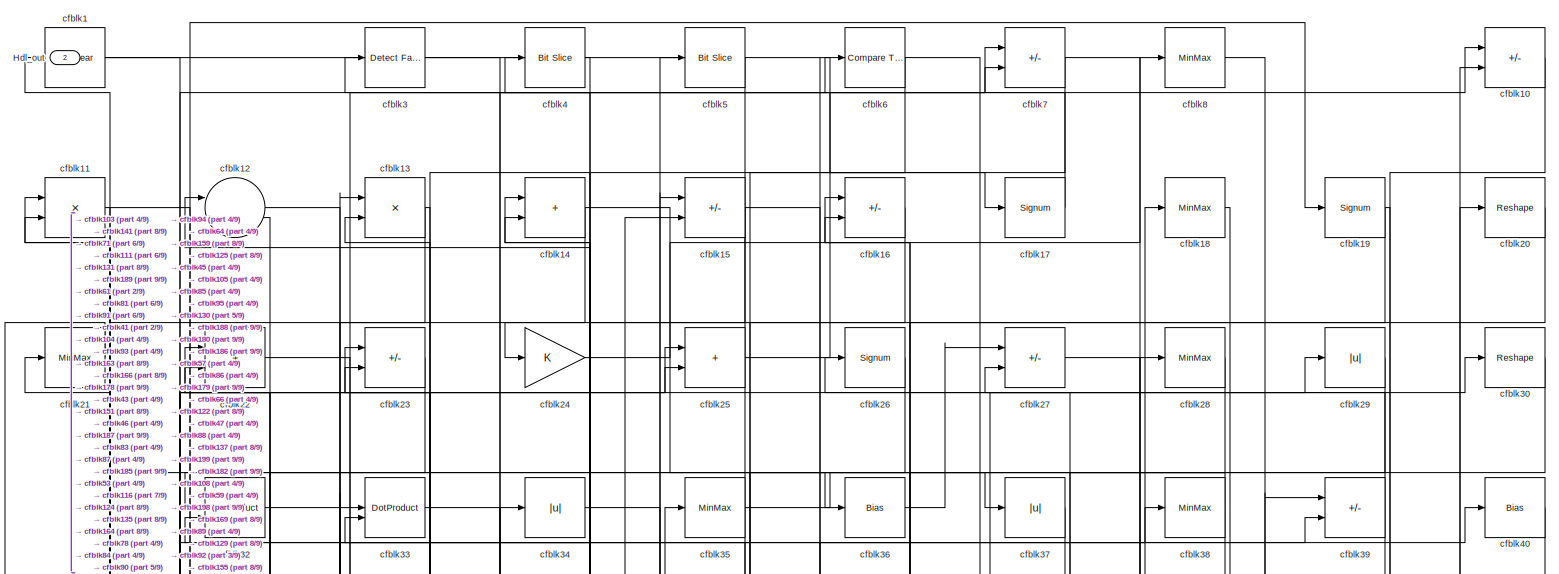
[diagram: root canvas - part 1/9, full width, top band]
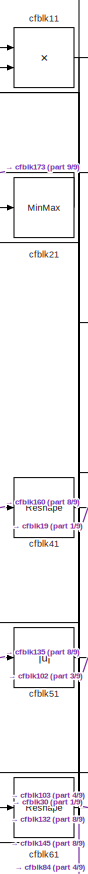
[diagram: root canvas - part 2/9, top left region]
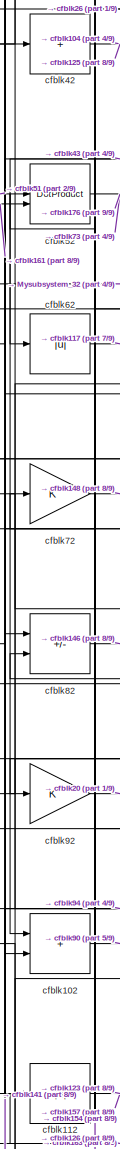
[diagram: root canvas - part 3/9, middle left region]
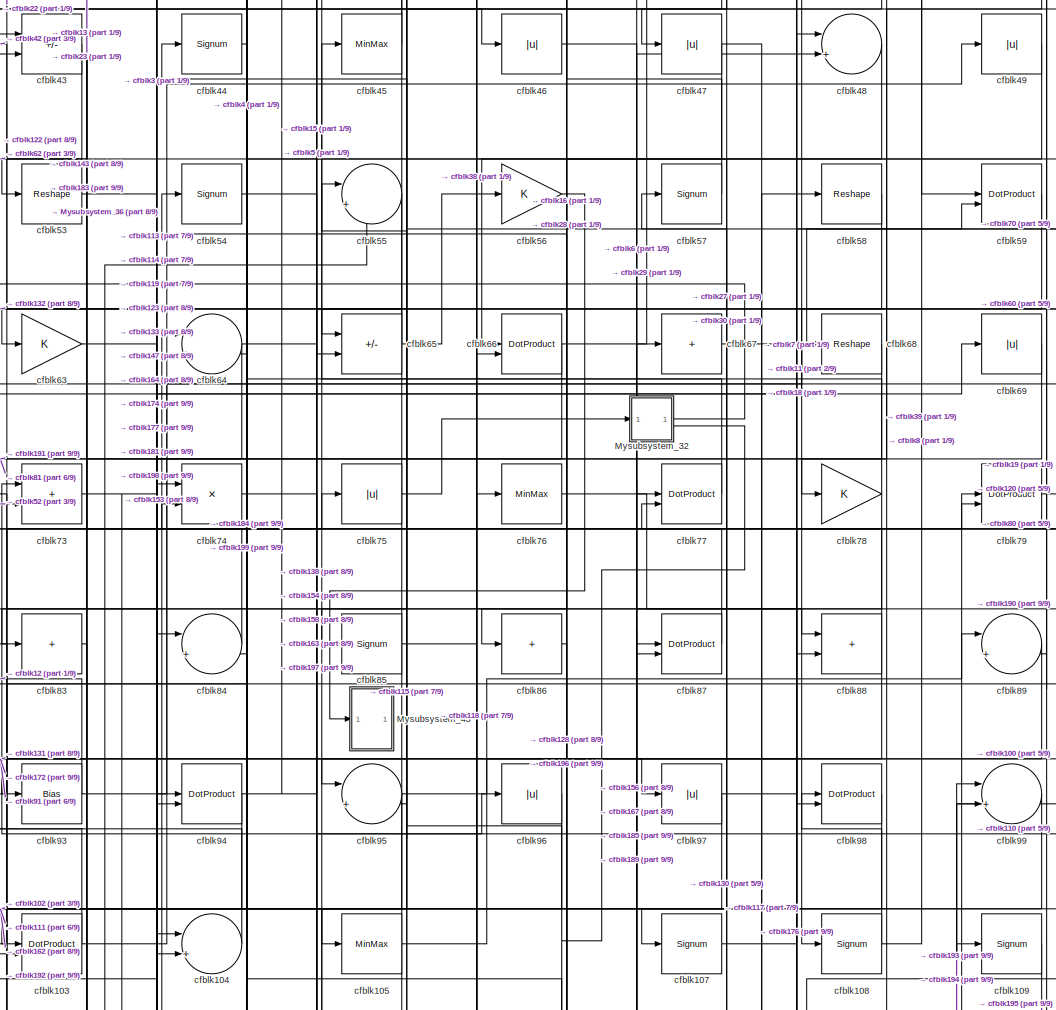
[diagram: root canvas - part 4/9, central region]
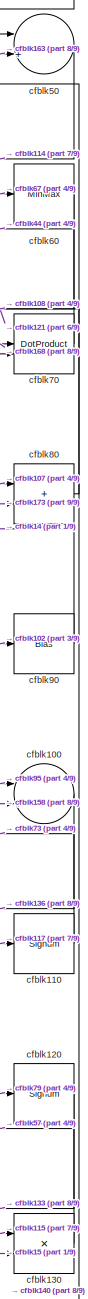
[diagram: root canvas - part 5/9, middle right region]
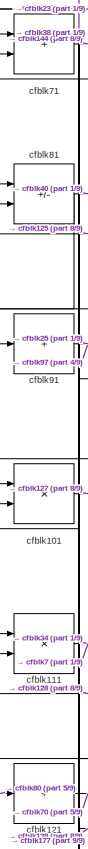
[diagram: root canvas - part 6/9, middle left region]
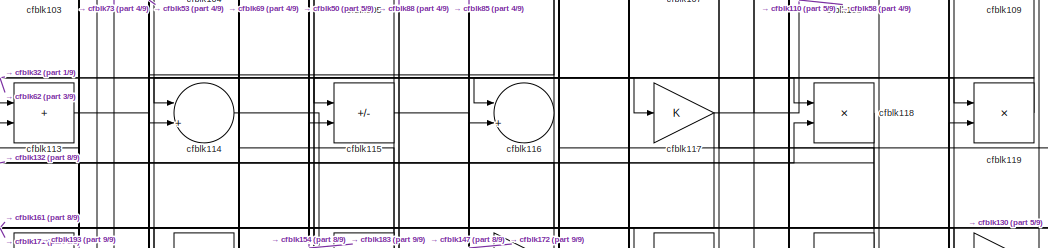
[diagram: root canvas - part 7/9, central region]
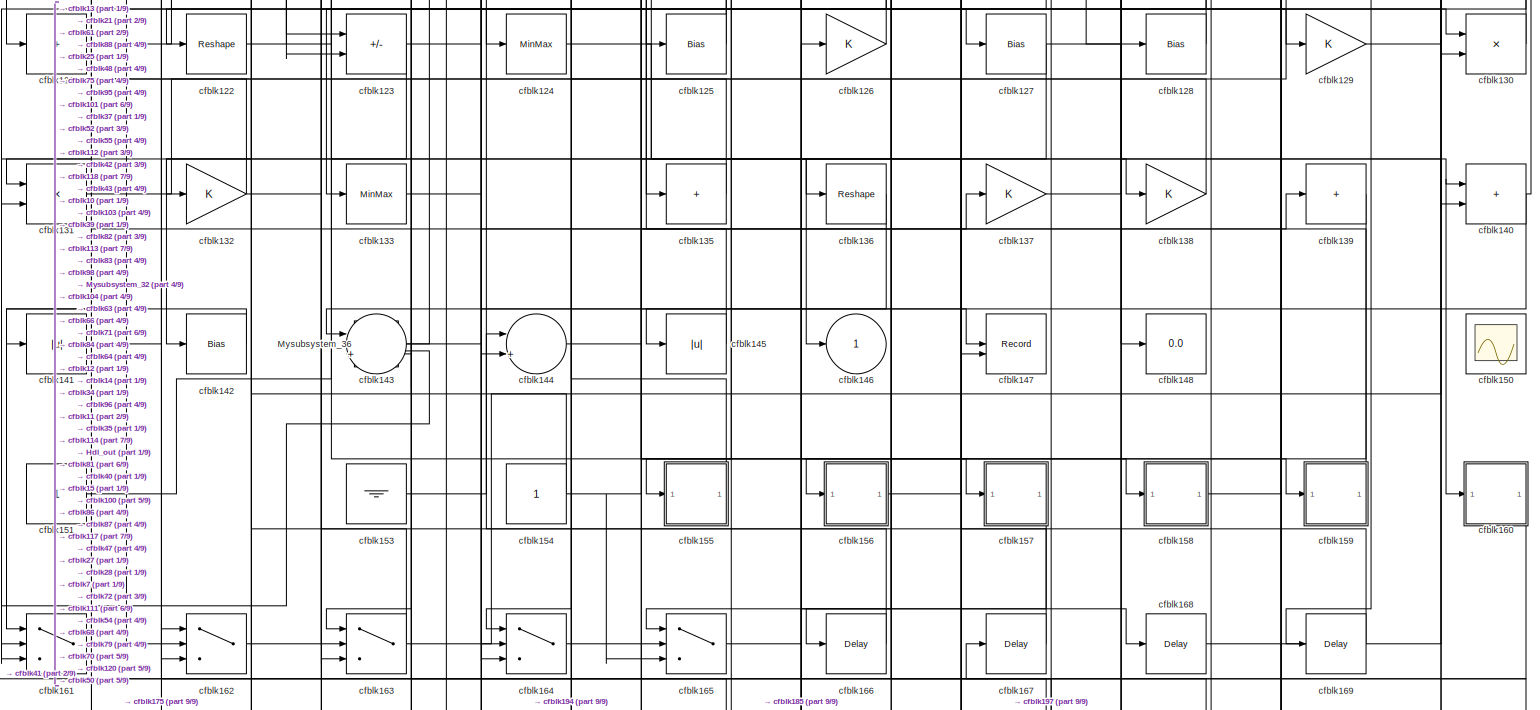
[diagram: root canvas - part 8/9, full width, bottom band]
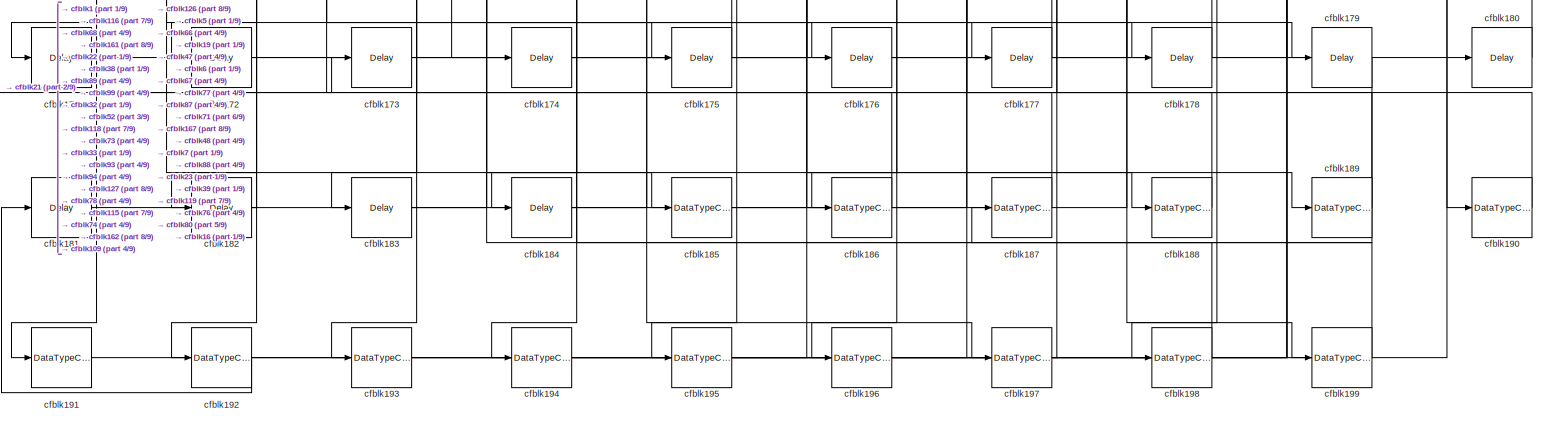
[diagram: root canvas - part 9/9, full width, bottom band]
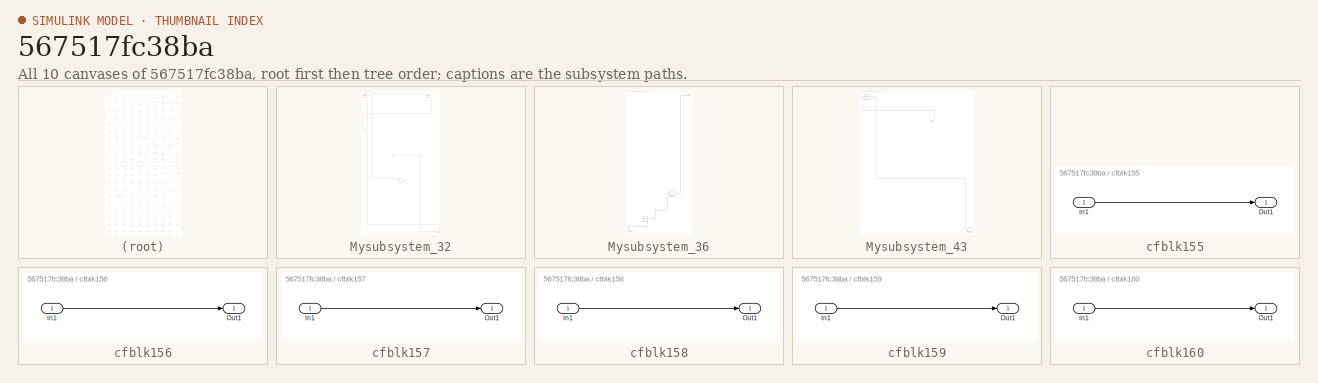
[diagram: thumbnail index - all 10 canvases of the model, root first then tree order]
MODEL slx_567517fc38ba
KIND model
CONFIG AbsTol = auto
CONFIG EnableMultiTasking = off
CONFIG FixedStep = auto
CONFIG MaxStep = auto
CONFIG MinStep = auto
CONFIG RelTol = 1e-3
CONFIG SampleTimeConstraint = Unconstrained
CONFIG SolverName = VariableStepAuto
CONFIG StartTime = 0.0
CONFIG StopTime = 10.0
BLOCK [Outport] Hdl_out
  OutDataTypeStr = uint8
  Port = 2
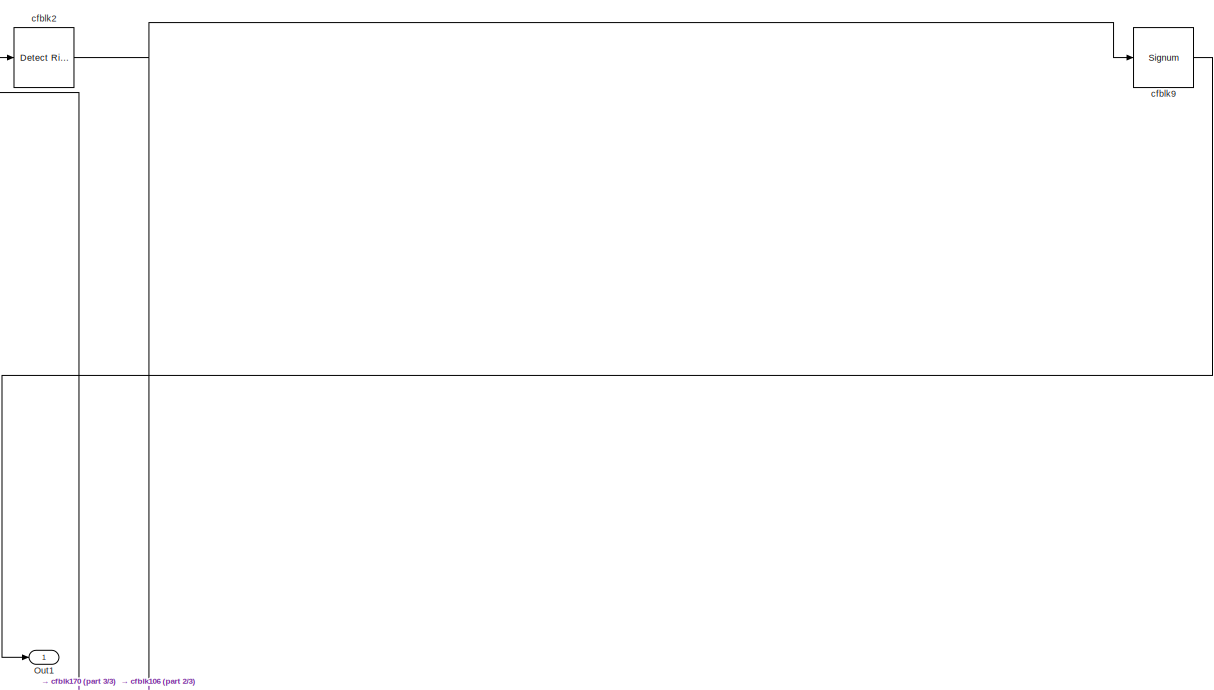
[diagram: Mysubsystem_32 - part 1/3, full width, top band]
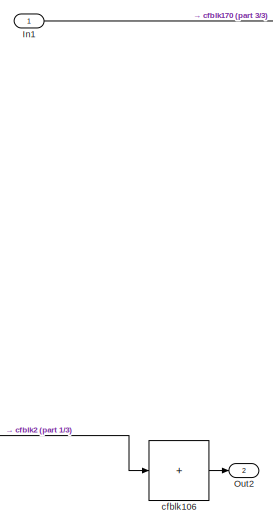
[diagram: Mysubsystem_32 - part 2/3, central region]
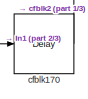
[diagram: Mysubsystem_32 - part 3/3, bottom right region]
BLOCK [SubSystem] Mysubsystem_32
  RTWFcnName = Mysubsystem_32
  RTWFcnNameOpts = User specified
  RTWFileNameOpts = Use function name
  RTWSystemCode = Reusable function
  TreatAsAtomicUnit = on
BLOCK [Inport] Mysubsystem_32/In1
BLOCK [Outport] Mysubsystem_32/Out1
BLOCK [Outport] Mysubsystem_32/Out2
  Port = 2
BLOCK [Sum] Mysubsystem_32/cfblk106
  IconShape = rectangular
  Inputs = +
BLOCK [Delay] Mysubsystem_32/cfblk170
  InputPortMap = u0
  SampleTime = 1
BLOCK [Reference] Mysubsystem_32/cfblk2  REF=hdlsllib/Logic and Bit
Operations/Detect Rise
Positive
  SourceBlock = hdlsllib/Logic and Bit\nOperations/Detect Rise\nPositive
  SourceType = Detect Rise Positive
BLOCK [Signum] Mysubsystem_32/cfblk9
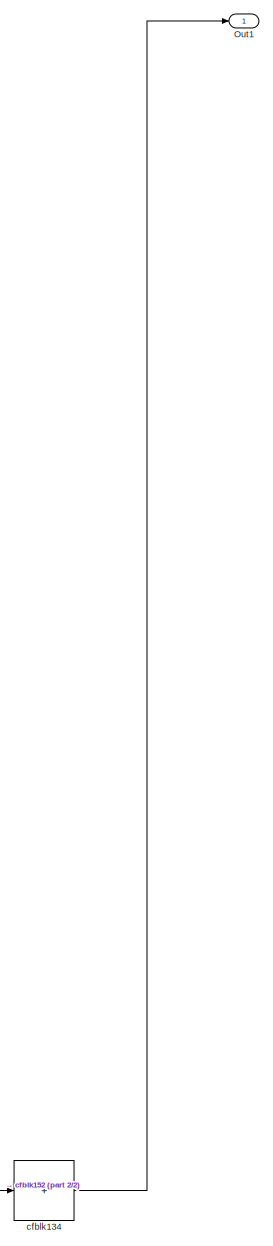
[diagram: Mysubsystem_36 - part 1/2, right side, full height]
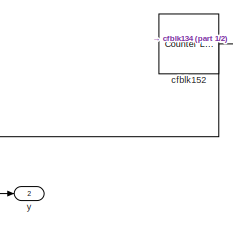
[diagram: Mysubsystem_36 - part 2/2, bottom left region]
BLOCK [SubSystem] Mysubsystem_36
  RTWFcnName = Mysubsystem_36
  RTWFcnNameOpts = User specified
  RTWFileNameOpts = Use function name
  RTWSystemCode = Reusable function
  TreatAsAtomicUnit = on
BLOCK [Outport] Mysubsystem_36/Out1
BLOCK [Sum] Mysubsystem_36/cfblk134
  IconShape = rectangular
  Inputs = +
BLOCK [Reference] Mysubsystem_36/cfblk152  REF=hdlsllib/Sources/Counter
Limited
  SourceBlock = hdlsllib/Sources/Counter\nLimited
  SourceType = Counter Limited
BLOCK [Outport] Mysubsystem_36/y
  Port = 2
BLOCK [SubSystem] Mysubsystem_43
  RTWFcnName = Mysubsystem_43
  RTWFcnNameOpts = User specified
  RTWFileNameOpts = Use function name
  RTWSystemCode = Reusable function
  TreatAsAtomicUnit = on
BLOCK [Inport] Mysubsystem_43/In1
BLOCK [Terminator] Mysubsystem_43/cfblk149
BLOCK [MinMax] Mysubsystem_43/cfblk31
BLOCK [Reference] cfblk1  REF=simulink/Logic and Bit
Operations/Bit Clear
  LibrarySourceBlock = hdlsllib/Logic and Bit\nOperations/Bit Clear
  SourceBlock = simulink/Logic and Bit\nOperations/Bit Clear
  SourceType = Bit Clear
BLOCK [Sum] cfblk10
  IconShape = rectangular
  Inputs = +-
  OutDataTypeStr = uint8
BLOCK [Sum] cfblk100
  Inputs = |++
  OutDataTypeStr = uint8
BLOCK [Product] cfblk101
  Inputs = */
  OutDataTypeStr = uint8
  RndMeth = Zero
  SaturateOnIntegerOverflow = on
BLOCK [Sum] cfblk102
  IconShape = rectangular
  OutDataTypeStr = uint8
BLOCK [DotProduct] cfblk103
  OutDataTypeStr = uint8
BLOCK [Sum] cfblk104
  Inputs = |++
  OutDataTypeStr = uint8
BLOCK [MinMax] cfblk105
  OutDataTypeStr = uint8
BLOCK [Signum] cfblk107
BLOCK [Signum] cfblk108
BLOCK [Signum] cfblk109
BLOCK [Product] cfblk11
  Inputs = */
  OutDataTypeStr = uint8
  RndMeth = Zero
  SaturateOnIntegerOverflow = on
BLOCK [Signum] cfblk110
BLOCK [Product] cfblk111
  Inputs = */
  OutDataTypeStr = uint8
  RndMeth = Zero
  SaturateOnIntegerOverflow = on
BLOCK [Abs] cfblk112
  OutDataTypeStr = uint8
  SaturateOnIntegerOverflow = off
BLOCK [Sum] cfblk113
  IconShape = rectangular
  OutDataTypeStr = uint8
BLOCK [Sum] cfblk114
  Inputs = |++
  OutDataTypeStr = uint8
BLOCK [Sum] cfblk115
  IconShape = rectangular
  Inputs = +-
  OutDataTypeStr = uint8
BLOCK [Sum] cfblk116
  Inputs = |++
  OutDataTypeStr = uint8
BLOCK [Gain] cfblk117
  OutDataTypeStr = uint8
BLOCK [Product] cfblk118
  Inputs = */
  OutDataTypeStr = uint8
  RndMeth = Zero
  SaturateOnIntegerOverflow = on
BLOCK [Product] cfblk119
  Inputs = */
  OutDataTypeStr = uint8
  RndMeth = Zero
  SaturateOnIntegerOverflow = on
BLOCK [Sum] cfblk12
  Inputs = |++
  OutDataTypeStr = uint8
BLOCK [Signum] cfblk120
BLOCK [Sum] cfblk121
  IconShape = rectangular
  Inputs = +
  OutDataTypeStr = uint8
BLOCK [Reshape] cfblk122
BLOCK [Sum] cfblk123
  IconShape = rectangular
  Inputs = +-
  OutDataTypeStr = uint8
BLOCK [MinMax] cfblk124
  OutDataTypeStr = uint8
BLOCK [Bias] cfblk125
  Bias = 0.0
  SaturateOnIntegerOverflow = off
BLOCK [Gain] cfblk126
  OutDataTypeStr = uint8
BLOCK [Bias] cfblk127
  Bias = 0.0
  SaturateOnIntegerOverflow = off
BLOCK [Bias] cfblk128
  Bias = 0.0
  SaturateOnIntegerOverflow = off
BLOCK [Gain] cfblk129
  OutDataTypeStr = uint8
BLOCK [Product] cfblk13
  Inputs = */
  OutDataTypeStr = uint8
  RndMeth = Zero
  SaturateOnIntegerOverflow = on
BLOCK [Product] cfblk130
  Inputs = */
  OutDataTypeStr = uint8
  RndMeth = Zero
  SaturateOnIntegerOverflow = on
BLOCK [Product] cfblk131
  Inputs = */
  OutDataTypeStr = uint8
  RndMeth = Zero
  SaturateOnIntegerOverflow = on
BLOCK [Gain] cfblk132
  OutDataTypeStr = uint8
BLOCK [MinMax] cfblk133
  OutDataTypeStr = uint8
BLOCK [Sum] cfblk135
  IconShape = rectangular
  Inputs = +
  OutDataTypeStr = uint8
BLOCK [Reshape] cfblk136
BLOCK [Gain] cfblk137
  OutDataTypeStr = uint8
BLOCK [Gain] cfblk138
  OutDataTypeStr = uint8
BLOCK [Sum] cfblk139
  IconShape = rectangular
  Inputs = +
  OutDataTypeStr = uint8
BLOCK [Sum] cfblk14
  IconShape = rectangular
  OutDataTypeStr = uint8
BLOCK [Sum] cfblk140
  IconShape = rectangular
  OutDataTypeStr = uint8
BLOCK [Abs] cfblk141
  OutDataTypeStr = uint8
  SaturateOnIntegerOverflow = off
BLOCK [Bias] cfblk142
  Bias = 0.0
  SaturateOnIntegerOverflow = off
BLOCK [Sum] cfblk143
  Inputs = |++
  OutDataTypeStr = uint8
BLOCK [Sum] cfblk144
  Inputs = |++
  OutDataTypeStr = uint8
BLOCK [Abs] cfblk145
  OutDataTypeStr = uint8
  SaturateOnIntegerOverflow = off
BLOCK [Outport] cfblk146
  OutDataTypeStr = uint8
  VectorParamsAs1DForOutWhenUnconnected = off
BLOCK [Record] cfblk147
  CompatibilityTag = XY
  FileSettingsInternal = {"entries":[{"content":{"excelSettings":{"content":{},"type":"Streamout.ExcelSettings"}},"type":"Streamout.FileSettingStorage","uuid":""}],"packageUris":["http:\/\/schema.mathworks.com\/mf0\/streamout_blocks\/R2020a"],"version":"1.0"}
  Layout = [1 1]
  SignalsInternal = {"entries":[{"content":{"signals":[{"content":{"blockPath":[],"dimensions":[1],"domain":"","lineColor":"#a2142f","plots":[1],"port":1,"signalID":53373,"signalName":"cfblk63"},"type":"RecordBlkView.Signal","uuid":""},{"content":{"blockPath":[],"dimensions":[1],"domain":"","lineColor":"#139fff","plots":[1],"port":2,"signalID":53376,"signalName":"cfblk114"},"type":"RecordBlkView.Signal","uuid":""}]},...<+143ch>
  VisualizationBindings = {"xyplotplugin":{"info":[{"series":[{"bindingParametersList":[{"parameter":"X-Axis","signalID":53373,"signalName":"cfblk63"},{"parameter":"Y-Axis","signalID":53376,"signalName":"cfblk114"}],"seriesID":62822}],"subplotID":1}]}}
  st = -1
BLOCK [Display] cfblk148
  Decimation = 1
BLOCK [Sum] cfblk15
  IconShape = rectangular
  Inputs = +-
  OutDataTypeStr = uint8
BLOCK [Scope] cfblk150
  Floating = on
  NumInputPorts = 1
  ScopeSpecificationString = Simulink.scopes.TimeScopeBlockCfg('CurrentConfiguration', extmgr.ConfigurationSet(extmgr.Configuration('Core','General UI',true,'FigureColor',[0.156862745098039 0.156862745098039 0.156862745098039]),extmgr.Configuration('Core','Source UI',true),extmgr.Configuration('Sources','WiredSimulink',true,'DataLoggingVariableName','ScopeData1','DataLoggingSaveFormat','StructureWithTime','DataLoggingLimitDat...<+2713ch>
BLOCK [Constant] cfblk151
  OutDataTypeStr = uint8
  SampleTime = -1
BLOCK [Ground] cfblk153
BLOCK [Constant] cfblk154
  OutDataTypeStr = uint8
  SampleTime = -1
BLOCK [SubSystem] cfblk155
  LibrarySourceBlock = hdlsllib/Ports &\nSubsystems/Subsystem
BLOCK [Inport] cfblk155/In1
BLOCK [Outport] cfblk155/Out1
BLOCK [SubSystem] cfblk156
  LibrarySourceBlock = hdlsllib/Ports &\nSubsystems/Subsystem
BLOCK [Inport] cfblk156/In1
BLOCK [Outport] cfblk156/Out1
BLOCK [SubSystem] cfblk157
  LibrarySourceBlock = hdlsllib/Ports &\nSubsystems/Subsystem
BLOCK [Inport] cfblk157/In1
BLOCK [Outport] cfblk157/Out1
BLOCK [SubSystem] cfblk158
  LibrarySourceBlock = hdlsllib/Ports &\nSubsystems/Subsystem
BLOCK [Inport] cfblk158/In1
BLOCK [Outport] cfblk158/Out1
BLOCK [SubSystem] cfblk159
  LibrarySourceBlock = hdlsllib/Ports &\nSubsystems/Subsystem
BLOCK [Inport] cfblk159/In1
BLOCK [Outport] cfblk159/Out1
BLOCK [Sum] cfblk16
  IconShape = rectangular
  Inputs = +-
  OutDataTypeStr = uint8
BLOCK [SubSystem] cfblk160
  LibrarySourceBlock = hdlsllib/Ports &\nSubsystems/Subsystem
BLOCK [Inport] cfblk160/In1
BLOCK [Outport] cfblk160/Out1
BLOCK [Switch] cfblk161
  InputSameDT = off
  OutDataTypeStr = uint8
  SaturateOnIntegerOverflow = off
BLOCK [Switch] cfblk162
  InputSameDT = off
  OutDataTypeStr = uint8
  SaturateOnIntegerOverflow = off
BLOCK [Switch] cfblk163
  InputSameDT = off
  OutDataTypeStr = uint8
  SaturateOnIntegerOverflow = off
BLOCK [Switch] cfblk164
  InputSameDT = off
  OutDataTypeStr = uint8
  SaturateOnIntegerOverflow = off
BLOCK [Switch] cfblk165
  InputSameDT = off
  OutDataTypeStr = uint8
  SaturateOnIntegerOverflow = off
BLOCK [Delay] cfblk166
  InputPortMap = u0
  SampleTime = 1
BLOCK [Delay] cfblk167
  InputPortMap = u0
  SampleTime = 1
BLOCK [Delay] cfblk168
  InputPortMap = u0
  SampleTime = 1
BLOCK [Delay] cfblk169
  InputPortMap = u0
  SampleTime = 1
BLOCK [Signum] cfblk17
BLOCK [Delay] cfblk171
  InputPortMap = u0
  SampleTime = 1
BLOCK [Delay] cfblk172
  InputPortMap = u0
  SampleTime = 1
BLOCK [Delay] cfblk173
  InputPortMap = u0
  SampleTime = 1
BLOCK [Delay] cfblk174
  InputPortMap = u0
  SampleTime = 1
BLOCK [Delay] cfblk175
  InputPortMap = u0
  SampleTime = 1
BLOCK [Delay] cfblk176
  InputPortMap = u0
  SampleTime = 1
BLOCK [Delay] cfblk177
  InputPortMap = u0
  SampleTime = 1
BLOCK [Delay] cfblk178
  InputPortMap = u0
  SampleTime = 1
BLOCK [Delay] cfblk179
  InputPortMap = u0
  SampleTime = 1
BLOCK [MinMax] cfblk18
  OutDataTypeStr = uint8
BLOCK [Delay] cfblk180
  InputPortMap = u0
  SampleTime = 1
BLOCK [Delay] cfblk181
  InputPortMap = u0
  SampleTime = 1
BLOCK [Delay] cfblk182
  InputPortMap = u0
  SampleTime = 1
BLOCK [Delay] cfblk183
  InputPortMap = u0
  SampleTime = 1
BLOCK [Delay] cfblk184
  InputPortMap = u0
  SampleTime = 1
BLOCK [DataTypeConversion] cfblk185
  OutDataTypeStr = uint8
  RndMeth = Floor
  SaturateOnIntegerOverflow = off
BLOCK [DataTypeConversion] cfblk186
  OutDataTypeStr = uint8
  RndMeth = Floor
  SaturateOnIntegerOverflow = off
BLOCK [DataTypeConversion] cfblk187
  OutDataTypeStr = uint8
  RndMeth = Floor
  SaturateOnIntegerOverflow = off
BLOCK [DataTypeConversion] cfblk188
  OutDataTypeStr = uint8
  RndMeth = Floor
  SaturateOnIntegerOverflow = off
BLOCK [DataTypeConversion] cfblk189
  OutDataTypeStr = uint8
  RndMeth = Floor
  SaturateOnIntegerOverflow = off
BLOCK [Signum] cfblk19
BLOCK [DataTypeConversion] cfblk190
  OutDataTypeStr = uint8
  RndMeth = Floor
  SaturateOnIntegerOverflow = off
BLOCK [DataTypeConversion] cfblk191
  OutDataTypeStr = uint8
  RndMeth = Floor
  SaturateOnIntegerOverflow = off
BLOCK [DataTypeConversion] cfblk192
  OutDataTypeStr = uint8
  RndMeth = Floor
  SaturateOnIntegerOverflow = off
BLOCK [DataTypeConversion] cfblk193
  OutDataTypeStr = uint8
  RndMeth = Floor
  SaturateOnIntegerOverflow = off
BLOCK [DataTypeConversion] cfblk194
  OutDataTypeStr = uint8
  RndMeth = Floor
  SaturateOnIntegerOverflow = off
BLOCK [DataTypeConversion] cfblk195
  OutDataTypeStr = uint8
  RndMeth = Floor
  SaturateOnIntegerOverflow = off
BLOCK [DataTypeConversion] cfblk196
  OutDataTypeStr = uint8
  RndMeth = Floor
  SaturateOnIntegerOverflow = off
BLOCK [DataTypeConversion] cfblk197
  OutDataTypeStr = uint8
  RndMeth = Floor
  SaturateOnIntegerOverflow = off
BLOCK [DataTypeConversion] cfblk198
  OutDataTypeStr = uint8
  RndMeth = Floor
  SaturateOnIntegerOverflow = off
BLOCK [DataTypeConversion] cfblk199
  OutDataTypeStr = uint8
  RndMeth = Floor
  SaturateOnIntegerOverflow = off
BLOCK [Reshape] cfblk20
BLOCK [MinMax] cfblk21
  OutDataTypeStr = uint8
BLOCK [Sum] cfblk22
  IconShape = rectangular
  OutDataTypeStr = uint8
BLOCK [Sum] cfblk23
  IconShape = rectangular
  Inputs = +-
  OutDataTypeStr = uint8
BLOCK [Gain] cfblk24
  OutDataTypeStr = uint8
BLOCK [Sum] cfblk25
  IconShape = rectangular
  OutDataTypeStr = uint8
BLOCK [Signum] cfblk26
BLOCK [Sum] cfblk27
  IconShape = rectangular
  Inputs = +-
  OutDataTypeStr = uint8
BLOCK [MinMax] cfblk28
  OutDataTypeStr = uint8
BLOCK [Abs] cfblk29
  OutDataTypeStr = uint8
  SaturateOnIntegerOverflow = off
BLOCK [Reference] cfblk3  REF=hdlsllib/Logic and Bit
Operations/Detect Fall
Nonpositive
  SourceBlock = hdlsllib/Logic and Bit\nOperations/Detect Fall\nNonpositive
  SourceType = Detect Fall Nonpositive
BLOCK [Reshape] cfblk30
BLOCK [DotProduct] cfblk32
  OutDataTypeStr = uint8
BLOCK [DotProduct] cfblk33
  OutDataTypeStr = uint8
BLOCK [Abs] cfblk34
  OutDataTypeStr = uint8
  SaturateOnIntegerOverflow = off
BLOCK [MinMax] cfblk35
  OutDataTypeStr = uint8
BLOCK [Bias] cfblk36
  Bias = 0.0
  SaturateOnIntegerOverflow = off
BLOCK [Abs] cfblk37
  OutDataTypeStr = uint8
  SaturateOnIntegerOverflow = off
BLOCK [MinMax] cfblk38
  OutDataTypeStr = uint8
BLOCK [Sum] cfblk39
  IconShape = rectangular
  Inputs = +-
  OutDataTypeStr = uint8
BLOCK [Reference] cfblk4  REF=hdlsllib/Logic and Bit
Operations/Bit Slice
  SourceBlock = hdlsllib/Logic and Bit\nOperations/Bit Slice
  SourceType = Bit Slice
BLOCK [Bias] cfblk40
  Bias = 0.0
  SaturateOnIntegerOverflow = off
BLOCK [Reshape] cfblk41
BLOCK [Sum] cfblk42
  IconShape = rectangular
  Inputs = +
  OutDataTypeStr = uint8
BLOCK [Sum] cfblk43
  IconShape = rectangular
  Inputs = +-
  OutDataTypeStr = uint8
BLOCK [Signum] cfblk44
BLOCK [MinMax] cfblk45
  OutDataTypeStr = uint8
BLOCK [Abs] cfblk46
  OutDataTypeStr = uint8
  SaturateOnIntegerOverflow = off
BLOCK [Abs] cfblk47
  OutDataTypeStr = uint8
  SaturateOnIntegerOverflow = off
BLOCK [Sum] cfblk48
  Inputs = |++
  OutDataTypeStr = uint8
BLOCK [Abs] cfblk49
  OutDataTypeStr = uint8
  SaturateOnIntegerOverflow = off
BLOCK [Reference] cfblk5  REF=hdlsllib/Logic and Bit
Operations/Bit Slice
  SourceBlock = hdlsllib/Logic and Bit\nOperations/Bit Slice
  SourceType = Bit Slice
BLOCK [Sum] cfblk50
  Inputs = |++
  OutDataTypeStr = uint8
BLOCK [Abs] cfblk51
  OutDataTypeStr = uint8
  SaturateOnIntegerOverflow = off
BLOCK [DotProduct] cfblk52
  OutDataTypeStr = uint8
BLOCK [Reshape] cfblk53
BLOCK [Signum] cfblk54
BLOCK [Sum] cfblk55
  Inputs = |++
  OutDataTypeStr = uint8
BLOCK [Gain] cfblk56
  OutDataTypeStr = uint8
BLOCK [Signum] cfblk57
BLOCK [Reshape] cfblk58
BLOCK [DotProduct] cfblk59
  OutDataTypeStr = uint8
BLOCK [Reference] cfblk6  REF=hdlsllib/Logic and Bit
Operations/Compare
To Constant
  SourceBlock = hdlsllib/Logic and Bit\nOperations/Compare\nTo Constant
  SourceType = Compare To Constant
BLOCK [MinMax] cfblk60
  OutDataTypeStr = uint8
BLOCK [Reshape] cfblk61
BLOCK [Abs] cfblk62
  OutDataTypeStr = uint8
  SaturateOnIntegerOverflow = off
BLOCK [Gain] cfblk63
  OutDataTypeStr = uint8
BLOCK [Sum] cfblk64
  Inputs = |++
  OutDataTypeStr = uint8
BLOCK [Sum] cfblk65
  IconShape = rectangular
  Inputs = +-
  OutDataTypeStr = uint8
BLOCK [DotProduct] cfblk66
  OutDataTypeStr = uint8
BLOCK [Sum] cfblk67
  IconShape = rectangular
  Inputs = +
  OutDataTypeStr = uint8
BLOCK [Reshape] cfblk68
BLOCK [Abs] cfblk69
  OutDataTypeStr = uint8
  SaturateOnIntegerOverflow = off
BLOCK [Sum] cfblk7
  IconShape = rectangular
  Inputs = +-
  OutDataTypeStr = uint8
BLOCK [DotProduct] cfblk70
  OutDataTypeStr = uint8
BLOCK [Sum] cfblk71
  IconShape = rectangular
  OutDataTypeStr = uint8
BLOCK [Gain] cfblk72
  OutDataTypeStr = uint8
BLOCK [Sum] cfblk73
  IconShape = rectangular
  OutDataTypeStr = uint8
BLOCK [Product] cfblk74
  Inputs = */
  OutDataTypeStr = uint8
  RndMeth = Zero
  SaturateOnIntegerOverflow = on
BLOCK [Abs] cfblk75
  OutDataTypeStr = uint8
  SaturateOnIntegerOverflow = off
BLOCK [MinMax] cfblk76
  OutDataTypeStr = uint8
BLOCK [DotProduct] cfblk77
  OutDataTypeStr = uint8
BLOCK [Gain] cfblk78
  OutDataTypeStr = uint8
BLOCK [DotProduct] cfblk79
  OutDataTypeStr = uint8
BLOCK [MinMax] cfblk8
  OutDataTypeStr = uint8
BLOCK [Sum] cfblk80
  IconShape = rectangular
  OutDataTypeStr = uint8
BLOCK [Sum] cfblk81
  IconShape = rectangular
  Inputs = +-
  OutDataTypeStr = uint8
BLOCK [Sum] cfblk82
  IconShape = rectangular
  Inputs = +-
  OutDataTypeStr = uint8
BLOCK [Sum] cfblk83
  IconShape = rectangular
  Inputs = +
  OutDataTypeStr = uint8
BLOCK [Sum] cfblk84
  Inputs = |++
  OutDataTypeStr = uint8
BLOCK [Signum] cfblk85
BLOCK [Sum] cfblk86
  IconShape = rectangular
  Inputs = +
  OutDataTypeStr = uint8
BLOCK [DotProduct] cfblk87
  OutDataTypeStr = uint8
BLOCK [Sum] cfblk88
  IconShape = rectangular
  OutDataTypeStr = uint8
BLOCK [Sum] cfblk89
  Inputs = |++
  OutDataTypeStr = uint8
BLOCK [Bias] cfblk90
  Bias = 0.0
  SaturateOnIntegerOverflow = off
BLOCK [Sum] cfblk91
  IconShape = rectangular
  Inputs = +
  OutDataTypeStr = uint8
BLOCK [Gain] cfblk92
  OutDataTypeStr = uint8
BLOCK [Bias] cfblk93
  Bias = 0.0
  SaturateOnIntegerOverflow = off
BLOCK [DotProduct] cfblk94
  OutDataTypeStr = uint8
BLOCK [Sum] cfblk95
  Inputs = |++
  OutDataTypeStr = uint8
BLOCK [Abs] cfblk96
  OutDataTypeStr = uint8
  SaturateOnIntegerOverflow = off
BLOCK [Abs] cfblk97
  OutDataTypeStr = uint8
  SaturateOnIntegerOverflow = off
BLOCK [DotProduct] cfblk98
  OutDataTypeStr = uint8
BLOCK [Sum] cfblk99
  Inputs = |++
  OutDataTypeStr = uint8
LINE Mysubsystem_32/In1:1 -> Mysubsystem_32/cfblk170:1
LINE Mysubsystem_32/cfblk106:1 -> Mysubsystem_32/Out2:1
LINE Mysubsystem_32/cfblk170:1 -> Mysubsystem_32/cfblk2:1
NET Mysubsystem_32/cfblk2:1 -> Mysubsystem_32/cfblk106:1, Mysubsystem_32/cfblk9:1
LINE Mysubsystem_32/cfblk9:1 -> Mysubsystem_32/Out1:1
LINE Mysubsystem_32:1 -> cfblk42:1
NET Mysubsystem_32:2 -> cfblk164:3, cfblk55:1
LINE Mysubsystem_36/cfblk134:1 -> Mysubsystem_36/Out1:1
NET Mysubsystem_36/cfblk152:1 -> Mysubsystem_36/cfblk134:1, Mysubsystem_36/y:1
LINE Mysubsystem_36:1 -> cfblk55:2
LINE Mysubsystem_36:2 -> cfblk161:2
LINE Mysubsystem_43/In1:1 -> Mysubsystem_43/cfblk31:1
LINE Mysubsystem_43/cfblk31:1 -> Mysubsystem_43/cfblk149:1
LINE cfblk100:1 -> cfblk136:1
LINE cfblk101:1 -> cfblk127:1
LINE cfblk102:1 -> cfblk90:1
NET cfblk103:1 -> cfblk11:2, cfblk18:1
LINE cfblk104:1 -> cfblk22:1
LINE cfblk105:1 -> cfblk89:1
LINE cfblk107:1 -> cfblk80:1
NET cfblk108:1 -> cfblk39:1, cfblk98:1
LINE cfblk109:1 -> cfblk195:1
LINE cfblk10:1 -> cfblk169:1
LINE cfblk110:1 -> cfblk73:1
NET cfblk111:1 -> cfblk34:1, cfblk7:2
NET cfblk112:1 -> cfblk123:2, cfblk157:1
LINE cfblk113:1 -> cfblk69:1
LINE cfblk114:1 -> cfblk147:2
LINE cfblk115:1 -> cfblk130:1
NET cfblk116:1 -> cfblk113:1, cfblk171:1, cfblk32:2
NET cfblk117:1 -> cfblk110:1, cfblk161:3, cfblk58:1
LINE cfblk118:1 -> cfblk193:1
LINE cfblk119:1 -> cfblk116:1
NET cfblk11:1 -> cfblk135:1, cfblk51:1
LINE cfblk120:1 -> cfblk133:1
LINE cfblk121:1 -> cfblk70:2
NET cfblk122:1 -> cfblk103:2, cfblk39:2, cfblk79:2
NET cfblk123:1 -> cfblk104:2, cfblk131:2
NET cfblk124:1 -> cfblk140:1, cfblk160:1
NET cfblk125:1 -> Hdl_out:1, cfblk81:1
NET cfblk126:1 -> cfblk112:1, cfblk72:1
NET cfblk127:1 -> cfblk140:2, cfblk142:1, cfblk194:1
NET cfblk128:1 -> cfblk111:1, cfblk54:1
LINE cfblk129:1 -> cfblk10:2
LINE cfblk12:1 -> cfblk43:1
LINE cfblk130:1 -> cfblk57:1
NET cfblk131:1 -> cfblk25:2, cfblk68:1, cfblk75:1, cfblk79:1
NET cfblk132:1 -> cfblk118:2, cfblk61:1
LINE cfblk133:1 -> cfblk84:1
LINE cfblk135:1 -> cfblk14:2
LINE cfblk136:1 -> cfblk145:1
LINE cfblk137:1 -> cfblk28:1
LINE cfblk138:1 -> cfblk101:1
LINE cfblk139:1 -> cfblk166:1
NET cfblk13:1 -> cfblk141:1, cfblk83:1
NET cfblk140:1 -> cfblk143:1, cfblk50:1
LINE cfblk141:1 -> cfblk82:1
LINE cfblk142:1 -> cfblk161:1
LINE cfblk143:1 -> cfblk139:1
LINE cfblk144:1 -> cfblk137:1
LINE cfblk145:1 -> cfblk21:1
NET cfblk14:1 -> cfblk163:3, cfblk36:1
LINE cfblk151:1 -> cfblk10:1
LINE cfblk153:1 -> cfblk64:1
NET cfblk154:1 -> cfblk113:2, cfblk165:3, cfblk52:1, cfblk96:1
LINE cfblk155/In1:1 -> cfblk155/Out1:1
LINE cfblk155:1 -> cfblk12:1
LINE cfblk156/In1:1 -> cfblk156/Out1:1
LINE cfblk156:1 -> cfblk48:2
LINE cfblk157/In1:1 -> cfblk157/Out1:1
LINE cfblk157:1 -> cfblk165:1
LINE cfblk158/In1:1 -> cfblk158/Out1:1
LINE cfblk158:1 -> cfblk100:2
LINE cfblk159/In1:1 -> cfblk159/Out1:1
LINE cfblk159:1 -> cfblk35:1
NET cfblk15:1 -> cfblk124:1, cfblk130:2
LINE cfblk160/In1:1 -> cfblk160/Out1:1
LINE cfblk160:1 -> cfblk41:1
NET cfblk161:1 -> cfblk175:1, cfblk52:2
LINE cfblk162:1 -> cfblk43:2
NET cfblk163:1 -> cfblk50:2, cfblk82:2
LINE cfblk164:1 -> cfblk165:2
LINE cfblk165:1 -> cfblk168:1
LINE cfblk166:1 -> cfblk13:1
LINE cfblk167:1 -> cfblk87:1
LINE cfblk168:1 -> cfblk70:1
LINE cfblk169:1 -> cfblk144:1
LINE cfblk16:1 -> cfblk85:1
LINE cfblk171:1 -> cfblk119:2
LINE cfblk172:1 -> cfblk116:2
LINE cfblk173:1 -> cfblk80:2
LINE cfblk174:1 -> cfblk66:2
LINE cfblk175:1 -> cfblk162:1
LINE cfblk176:1 -> cfblk48:1
LINE cfblk177:1 -> cfblk71:2
LINE cfblk178:1 -> cfblk23:2
LINE cfblk179:1 -> cfblk187:1
LINE cfblk17:1 -> cfblk3:1
LINE cfblk180:1 -> cfblk16:2
LINE cfblk181:1 -> cfblk94:2
LINE cfblk182:1 -> cfblk22:2
LINE cfblk183:1 -> cfblk115:2
LINE cfblk184:1 -> cfblk88:2
NET cfblk185:1 -> cfblk126:1, cfblk67:1
LINE cfblk186:1 -> cfblk33:1
LINE cfblk187:1 -> cfblk33:2
LINE cfblk188:1 -> cfblk1:1
LINE cfblk189:1 -> cfblk77:1
LINE cfblk18:1 -> cfblk78:1
LINE cfblk190:1 -> cfblk77:2
LINE cfblk191:1 -> cfblk76:1
NET cfblk192:1 -> cfblk180:1, cfblk181:1
LINE cfblk193:1 -> cfblk99:1
LINE cfblk194:1 -> cfblk99:2
LINE cfblk195:1 -> cfblk87:2
LINE cfblk196:1 -> cfblk109:1
LINE cfblk197:1 -> cfblk167:1
LINE cfblk198:1 -> cfblk74:1
LINE cfblk199:1 -> cfblk74:2
NET cfblk19:1 -> cfblk186:1, cfblk89:2
LINE cfblk1:1 -> cfblk189:1
LINE cfblk20:1 -> cfblk24:1
LINE cfblk21:1 -> cfblk173:1
LINE cfblk22:1 -> cfblk46:1
LINE cfblk23:1 -> cfblk71:1
LINE cfblk24:1 -> cfblk8:1
LINE cfblk25:1 -> cfblk7:1
LINE cfblk26:1 -> cfblk92:1
LINE cfblk27:1 -> cfblk129:1
LINE cfblk28:1 -> cfblk86:1
LINE cfblk29:1 -> cfblk105:1
LINE cfblk30:1 -> cfblk47:1
LINE cfblk32:1 -> cfblk178:1
LINE cfblk33:1 -> cfblk185:1
LINE cfblk34:1 -> cfblk159:1
LINE cfblk35:1 -> cfblk37:1
LINE cfblk36:1 -> cfblk27:1
LINE cfblk37:1 -> cfblk122:1
NET cfblk38:1 -> cfblk182:1, cfblk32:1, cfblk91:1
NET cfblk39:1 -> cfblk198:1, cfblk26:1
LINE cfblk3:1 -> cfblk94:1
LINE cfblk40:1 -> cfblk155:1
LINE cfblk41:1 -> cfblk19:1
NET cfblk42:1 -> cfblk104:1, cfblk123:1, cfblk125:1
LINE cfblk43:1 -> cfblk62:1
LINE cfblk44:1 -> cfblk64:2
LINE cfblk45:1 -> cfblk13:2
NET cfblk46:1 -> cfblk88:1, cfblk98:2
NET cfblk47:1 -> cfblk128:1, cfblk196:1
NET cfblk48:1 -> cfblk107:1, cfblk162:2
LINE cfblk49:1 -> cfblk66:1
LINE cfblk4:1 -> cfblk84:2
LINE cfblk50:1 -> cfblk114:1
LINE cfblk51:1 -> cfblk102:1
NET cfblk52:1 -> cfblk176:1, cfblk73:2
NET cfblk53:1 -> cfblk119:1, cfblk6:1
LINE cfblk54:1 -> cfblk158:1
LINE cfblk55:1 -> cfblk132:1
LINE cfblk56:1 -> Mysubsystem_43:1
LINE cfblk57:1 -> cfblk16:1
LINE cfblk58:1 -> cfblk65:2
LINE cfblk59:1 -> cfblk65:1
NET cfblk5:1 -> cfblk17:1, cfblk188:1
LINE cfblk60:1 -> cfblk108:1
LINE cfblk61:1 -> cfblk30:1
LINE cfblk62:1 -> cfblk117:1
LINE cfblk63:1 -> cfblk147:1
NET cfblk64:1 -> cfblk138:1, cfblk163:2, cfblk5:1, cfblk81:2
NET cfblk65:1 -> cfblk56:1, cfblk63:1
NET cfblk66:1 -> cfblk164:2, cfblk29:1
LINE cfblk67:1 -> cfblk60:1
LINE cfblk68:1 -> cfblk191:1
LINE cfblk69:1 -> cfblk93:1
NET cfblk6:1 -> cfblk179:1, cfblk95:1
LINE cfblk70:1 -> cfblk44:1
LINE cfblk71:1 -> cfblk144:2
LINE cfblk72:1 -> cfblk148:1
NET cfblk73:1 -> cfblk114:2, cfblk174:1
LINE cfblk74:1 -> cfblk197:1
LINE cfblk75:1 -> Mysubsystem_32:1
LINE cfblk76:1 -> cfblk190:1
LINE cfblk77:1 -> cfblk45:1
NET cfblk78:1 -> cfblk183:1, cfblk184:1, cfblk4:1
LINE cfblk79:1 -> cfblk120:1
NET cfblk7:1 -> cfblk164:1, cfblk199:1, cfblk53:1
LINE cfblk80:1 -> cfblk121:1
NET cfblk81:1 -> cfblk101:2, cfblk40:1
LINE cfblk82:1 -> cfblk146:1
LINE cfblk83:1 -> cfblk143:2
LINE cfblk84:1 -> cfblk11:1
NET cfblk85:1 -> cfblk118:1, cfblk38:1
LINE cfblk86:1 -> cfblk156:1
LINE cfblk87:1 -> cfblk23:1
NET cfblk88:1 -> cfblk115:1, cfblk131:1, cfblk27:2
NET cfblk89:1 -> cfblk172:1, cfblk95:2
LINE cfblk8:1 -> cfblk59:1
LINE cfblk90:1 -> cfblk14:1
NET cfblk91:1 -> cfblk25:1, cfblk97:1
LINE cfblk92:1 -> cfblk20:1
NET cfblk93:1 -> cfblk12:2, cfblk177:1, cfblk49:1
NET cfblk94:1 -> cfblk102:2, cfblk15:1, cfblk15:2
NET cfblk95:1 -> cfblk100:1, cfblk162:3
LINE cfblk96:1 -> cfblk103:1
NET cfblk97:1 -> cfblk111:2, cfblk59:2
LINE cfblk98:1 -> cfblk163:1
LINE cfblk99:1 -> cfblk192:1
note: NET lines group one-source signal fan-out (src -> all destinations, sorted); 1:1 wires keep LINE
